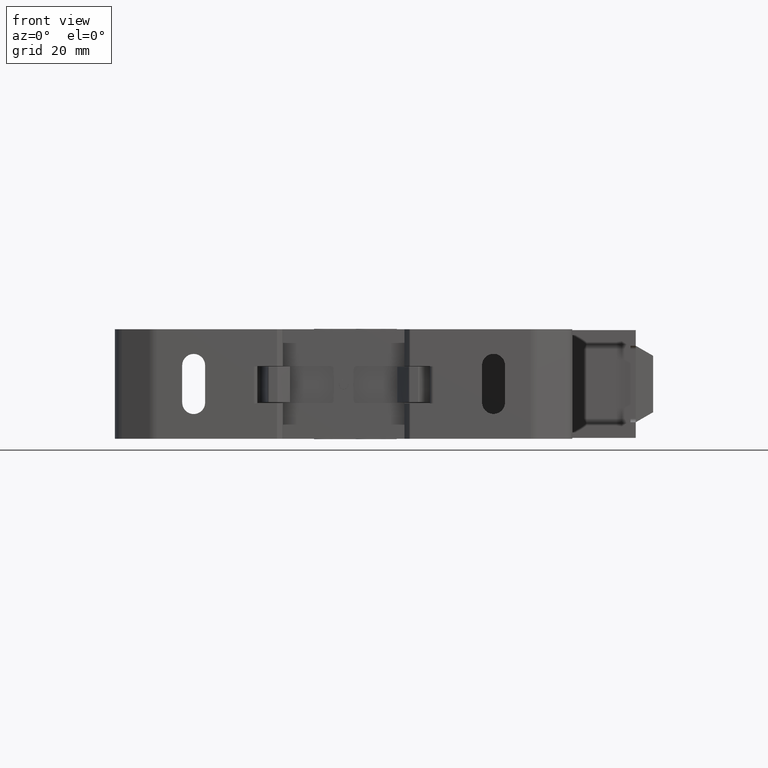
[diagram: clean part render]
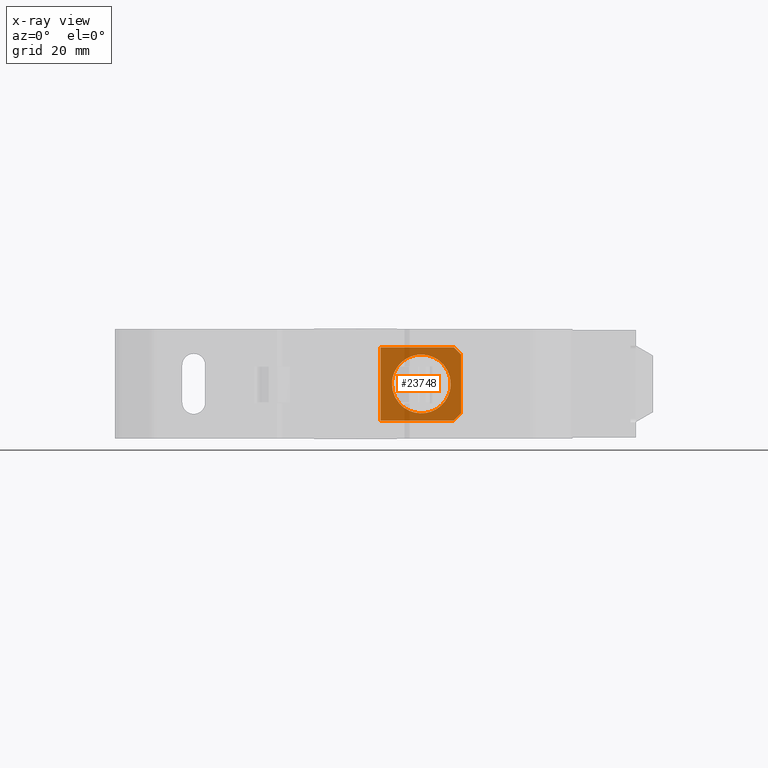
[diagram: x-ray — body ghosted, one internal face saturated and labeled with its STEP entity id]
A machine part, front view, then the same camera in x-ray: the body is ghosted and one INTERNAL B-rep face — a face not visible from any outside direction — is saturated and labeled: STEP entity #23748.
In plain terms, the highlighted planar face has unit normal (0, 1, 0).
Its self-contained STEP definition (entity closure, byte-faithful):
#1706 = EDGE_CURVE ( 'NONE', #12504, #12574, #12009, .T. ) ;
#2049 = EDGE_CURVE ( 'NONE', #12841, #12872, #6339, .T. ) ;
#2131 = EDGE_CURVE ( 'NONE', #12514, #12543, #15639, .T. ) ;
#2186 = EDGE_CURVE ( 'NONE', #12574, #12555, #15781, .T. ) ;
#2216 = EDGE_CURVE ( 'NONE', #12543, #12531, #15830, .T. ) ;
#2240 = EDGE_CURVE ( 'NONE', #12514, #12555, #15875, .T. ) ;
#2245 = EDGE_CURVE ( 'NONE', #12531, #12504, #15907, .T. ) ;
#2386 = AXIS2_PLACEMENT_3D ( 'NONE', #3740, #3721, #3754 ) ;
#3721 = DIRECTION ( 'NONE',  ( 0.0000000000000000000, 1.000000000000000000, 0.0000000000000000000 ) ) ;
#3722 = FACE_OUTER_BOUND ( 'NONE', #9302, .T. ) ;
#3723 = FACE_BOUND ( 'NONE', #9308, .T. ) ;
#3740 = CARTESIAN_POINT ( 'NONE',  ( 195.0000000000000000, 11.99999744784864000, 23.99999999999870000 ) ) ;
#3750 = PLANE ( 'NONE',  #2386 ) ;
#3754 = DIRECTION ( 'NONE',  ( 0.0000000000000000000, -0.0000000000000000000, 1.000000000000000000 ) ) ;
#6339 = B_SPLINE_CURVE_WITH_KNOTS ( 'NONE', 3,
 ( #14970, #14995, #14972, #14949, #14975, #14976, #14987, #14960, #14961, #14979, #14962, #14963, #14988, #14950, #14982, #14964, #14965, #14966, #14989, #14999, #14983, #14992, #14968, #14993, #14967, #14969, #14994, #14996, #15000, #15059, #15031, #15040, #15060, #15032, #15058, #15033, #15065, #15011, #15054, #15016, #15003, #15004, #15066, #15020, #15043, #15038, #15046, #15042, #15048, #15026, #15061, #15053, #15005, #15014, #15029, #15037, #15045, #15030, #15055, #15006, #15034, #15049, #15050, #15007, #15062, #15056, #15008, #15009, #15012, #15021, #15041, #15010, #15044, #15018, #15017, #15047, #15019, #15022, #15035, #15063, #15051, #15036, #15027, #15052, #15039, #15013, #15023, #15057, #15028, #15064, #15015, #15024, #15025, #15106, #15109 ),
 .UNSPECIFIED., .F., .F.,
 ( 4, 1, 1, 1, 2, 2, 1, 1, 1, 2, 2, 1, 2, 2, 2, 2, 1, 1, 2, 2, 1, 1, 1, 2, 2, 1, 1, 1, 2, 2, 2, 2, 1, 1, 1, 2, 2, 1, 1, 1, 2, 2, 1, 2, 2, 2, 2, 1, 1, 2, 2, 1, 1, 1, 2, 2, 1, 1, 1, 1, 2, 2, 4 ),
 ( 0.0000000000000000000, 0.03124999999997921800, 0.04687499999996857400, 0.05468749999996324500, 0.05859374999996031000, 0.06249999999995738100, 0.09374999999993491300, 0.1093749999999241200, 0.1171874999999183800, 0.1210937499999155300, 0.1249999999999126700, 0.1562499999998920000, 0.1718749999998816800, 0.1874999999998713500, 0.2187499999998503700, 0.2499999999998293900, 0.2812499999998084300, 0.2968749999997977700, 0.3046874999997925000, 0.3124999999997871700, 0.3437499999997706800, 0.3593749999997623600, 0.3671874999997581400, 0.3710937499997559700, 0.3749999999997538100, 0.4062499999997332700, 0.4218749999997230500, 0.4296874999997179500, 0.4335937499997154500, 0.4374999999997129000, 0.4687499999997057900, 0.4999999999996986900, 0.5312499999996915800, 0.5468749999996896900, 0.5546874999996888000, 0.5585937499996900300, 0.5624999999996912500, 0.5937499999997014600, 0.6093749999997051200, 0.6171874999997054600, 0.6210937499997071200, 0.6249999999997086800, 0.6562499999997362100, 0.6718749999997499800, 0.6874999999997638600, 0.7187499999997913900, 0.7499999999998188100, 0.7812499999998463500, 0.7968749999998600000, 0.8046874999998658900, 0.8124999999998717700, 0.8437499999998904200, 0.8593749999998997500, 0.8671874999999046300, 0.8710937499999068500, 0.8749999999999091800, 0.9062499999999340500, 0.9218749999999460400, 0.9296874999999520400, 0.9335937499999551500, 0.9355468749999564800, 0.9374999999999578100, 1.000000000000000000 ),
 .UNSPECIFIED. ) ;
#7824 = VECTOR ( 'NONE', #15877, 1000.000000000000000 ) ;
#7842 = VECTOR ( 'NONE', #15679, 1000.000000000000000 ) ;
#7846 = VECTOR ( 'NONE', #15759, 1000.000000000000000 ) ;
#7887 = VECTOR ( 'NONE', #15799, 1000.000000000000000 ) ;
#7900 = VECTOR ( 'NONE', #15917, 1000.000000000000000 ) ;
#8069 = VECTOR ( 'NONE', #12016, 1000.000000000000000 ) ;
#9302 = EDGE_LOOP ( 'NONE', ( #25243, #25180, #25185, #25211, #25224, #25190 ) ) ;
#9308 = EDGE_LOOP ( 'NONE', ( #25168, #25181 ) ) ;
#11166 = EDGE_CURVE ( 'NONE', #12872, #12841, #16175, .T. ) ;
#12009 = LINE ( 'NONE', #12010, #8069 ) ;
#12010 = CARTESIAN_POINT ( 'NONE',  ( 193.0000000000000000, 11.99999744784863900, 23.99999999999870000 ) ) ;
#12016 = DIRECTION ( 'NONE',  ( -0.7071067811865482400, -0.0000000000000000000, 0.7071067811865469100 ) ) ;
#12504 = VERTEX_POINT ( 'NONE', #26276 ) ;
#12514 = VERTEX_POINT ( 'NONE', #26310 ) ;
#12531 = VERTEX_POINT ( 'NONE', #26344 ) ;
#12543 = VERTEX_POINT ( 'NONE', #26355 ) ;
#12555 = VERTEX_POINT ( 'NONE', #26316 ) ;
#12574 = VERTEX_POINT ( 'NONE', #26378 ) ;
#12841 = VERTEX_POINT ( 'NONE', #26679 ) ;
#12872 = VERTEX_POINT ( 'NONE', #26644 ) ;
#14949 = CARTESIAN_POINT ( 'NONE',  ( 191.9806942001365500, 11.99999744784863900, 14.59269266149574000 ) ) ;
#14950 = CARTESIAN_POINT ( 'NONE',  ( 191.4818012685582900, 11.99999744784863700, 16.54642125705480300 ) ) ;
#14960 = CARTESIAN_POINT ( 'NONE',  ( 191.9151391918946700, 11.99999744784864200, 15.00401838029684300 ) ) ;
#14961 = CARTESIAN_POINT ( 'NONE',  ( 191.8593321082791500, 11.99999744784864200, 15.30614309357065400 ) ) ;
#14962 = CARTESIAN_POINT ( 'NONE',  ( 191.6224311479026000, 11.99999744784864000, 16.16008941292181000 ) ) ;
#14963 = CARTESIAN_POINT ( 'NONE',  ( 191.5423930576236300, 11.99999744784864200, 16.38594702912222400 ) ) ;
#14964 = CARTESIAN_POINT ( 'NONE',  ( 191.3520683225435400, 11.99999744784864000, 16.87500961269005000 ) ) ;
#14965 = CARTESIAN_POINT ( 'NONE',  ( 191.1755677909162000, 11.99999744784863900, 17.26265686539646200 ) ) ;
#14966 = CARTESIAN_POINT ( 'NONE',  ( 190.9697809039120100, 11.99999744784864200, 17.63640403415840700 ) ) ;
#14967 = CARTESIAN_POINT ( 'NONE',  ( 189.3696509937148000, 11.99999744784864000, 19.68061693844131500 ) ) ;
#14968 = CARTESIAN_POINT ( 'NONE',  ( 189.9768832214970200, 11.99999744784864000, 19.05186394903301000 ) ) ;
#14969 = CARTESIAN_POINT ( 'NONE',  ( 189.0467027463389800, 11.99999744784863900, 19.97198538759694100 ) ) ;
#14970 = CARTESIAN_POINT ( 'NONE',  ( 192.0500080417064100, 11.99999744784972200, 13.49999999999870100 ) ) ;
#14972 = CARTESIAN_POINT ( 'NONE',  ( 192.0320430057445300, 11.99999744784864000, 14.14541888019480200 ) ) ;
#14975 = CARTESIAN_POINT ( 'NONE',  ( 191.9473671761943200, 11.99999744784863900, 14.81543755842851300 ) ) ;
#14976 = CARTESIAN_POINT ( 'NONE',  ( 191.9314443185464500, 11.99999744784864200, 14.91070851560304600 ) ) ;
#14979 = CARTESIAN_POINT ( 'NONE',  ( 191.7655999834757700, 11.99999744784864000, 15.70416113195108400 ) ) ;
#14982 = CARTESIAN_POINT ( 'NONE',  ( 191.4698005435755300, 11.99999744784864000, 16.57732413118800400 ) ) ;
#14983 = CARTESIAN_POINT ( 'NONE',  ( 190.5136732317134300, 11.99999744784863900, 18.36723624780117700 ) ) ;
#14987 = CARTESIAN_POINT ( 'NONE',  ( 191.9204646695842200, 11.99999744784864000, 14.97418001116142400 ) ) ;
#14988 = CARTESIAN_POINT ( 'NONE',  ( 191.5062795176842200, 11.99999744784863900, 16.48229175228991400 ) ) ;
#14989 = CARTESIAN_POINT ( 'NONE',  ( 190.8260815669364100, 11.99999744784864200, 17.88247990578981500 ) ) ;
#14992 = CARTESIAN_POINT ( 'NONE',  ( 190.3427364777547600, 11.99999744784864000, 18.60148732072545400 ) ) ;
#14993 = CARTESIAN_POINT ( 'NONE',  ( 189.7804696917423500, 11.99999744784864000, 19.26948766361679700 ) ) ;
#14994 = CARTESIAN_POINT ( 'NONE',  ( 188.6439698993206100, 11.99999744784863900, 20.28220285776034300 ) ) ;
#14995 = CARTESIAN_POINT ( 'NONE',  ( 192.0498187095054200, 11.99999744784864400, 13.75898308919046900 ) ) ;
#14996 = CARTESIAN_POINT ( 'NONE',  ( 188.4658072737956300, 11.99999744784864000, 20.40878626200505500 ) ) ;
#14999 = CARTESIAN_POINT ( 'NONE',  ( 190.7520935513961100, 11.99999744784864000, 18.00226550025900400 ) ) ;
#15000 = CARTESIAN_POINT ( 'NONE',  ( 188.3457960047910000, 11.99999744784863900, 20.49176032258796500 ) ) ;
#15003 = CARTESIAN_POINT ( 'NONE',  ( 185.3733957693890200, 11.99999744784863700, 21.76227053113214900 ) ) ;
#15004 = CARTESIAN_POINT ( 'NONE',  ( 185.2725355354336600, 11.99999744784863900, 21.78285807558034600 ) ) ;
#15005 = CARTESIAN_POINT ( 'NONE',  ( 182.1900077742890300, 11.99999744784863700, 21.83156710292424700 ) ) ;
#15006 = CARTESIAN_POINT ( 'NONE',  ( 180.6177162806416200, 11.99999744784864200, 21.40627147251517200 ) ) ;
#15007 = CARTESIAN_POINT ( 'NONE',  ( 179.8373511763217600, 11.99999744784863900, 21.07555974917820400 ) ) ;
#15008 = CARTESIAN_POINT ( 'NONE',  ( 179.0977425413443300, 11.99999744784864000, 20.65208550961040500 ) ) ;
#15009 = CARTESIAN_POINT ( 'NONE',  ( 178.7327717940999000, 11.99999744784864400, 20.41366519015615900 ) ) ;
#15010 = CARTESIAN_POINT ( 'NONE',  ( 177.4193911033109100, 11.99999744784864200, 19.26964295209954500 ) ) ;
#15011 = CARTESIAN_POINT ( 'NONE',  ( 186.4566731747767100, 11.99999744784863700, 21.45727455393304000 ) ) ;
#15012 = CARTESIAN_POINT ( 'NONE',  ( 178.4985207212751300, 11.99999744784864600, 20.24272843627382900 ) ) ;
#15013 = CARTESIAN_POINT ( 'NONE',  ( 175.5107838397127300, 11.99999744784864400, 15.96976298497176200 ) ) ;
#15014 = CARTESIAN_POINT ( 'NONE',  ( 182.1262001609430000, 11.99999744784864000, 21.82052536700527800 ) ) ;
#15015 = CARTESIAN_POINT ( 'NONE',  ( 175.2973989478625500, 11.99999744784864000, 15.07138840040369000 ) ) ;
#15016 = CARTESIAN_POINT ( 'NONE',  ( 185.6073581485415800, 11.99999744784863900, 21.71009961224765300 ) ) ;
#15017 = CARTESIAN_POINT ( 'NONE',  ( 176.6912217797413400, 11.99999744784864000, 18.36579923216819000 ) ) ;
#15018 = CARTESIAN_POINT ( 'NONE',  ( 176.8178051840073700, 11.99999744784863900, 18.54396185773564600 ) ) ;
#15019 = CARTESIAN_POINT ( 'NONE',  ( 176.5663354883515700, 11.99999744784864200, 18.18343323770439900 ) ) ;
#15020 = CARTESIAN_POINT ( 'NONE',  ( 185.1692235157278500, 11.99999744784864400, 21.80306436789127700 ) ) ;
#15021 = CARTESIAN_POINT ( 'NONE',  ( 178.0481440929685000, 11.99999744784863900, 19.87687518001683200 ) ) ;
#15022 = CARTESIAN_POINT ( 'NONE',  ( 176.3716379061297600, 11.99999744784863900, 17.88587912968480300 ) ) ;
#15023 = CARTESIAN_POINT ( 'NONE',  ( 175.3899086633061600, 11.99999744784863900, 15.50735069694060900 ) ) ;
#15024 = CARTESIAN_POINT ( 'NONE',  ( 175.2940047684845400, 11.99999744784864200, 15.05336975101373300 ) ) ;
#15025 = CARTESIAN_POINT ( 'NONE',  ( 175.1974108018450800, 11.99999744784864000, 14.53256513261963300 ) ) ;
#15026 = CARTESIAN_POINT ( 'NONE',  ( 182.9572781038027100, 11.99999744784863700, 21.93253165968894100 ) ) ;
#15027 = CARTESIAN_POINT ( 'NONE',  ( 175.7698948683519100, 11.99999744784864000, 16.67690529879752500 ) ) ;
#15028 = CARTESIAN_POINT ( 'NONE',  ( 175.3137187817956700, 11.99999744784864000, 15.15571763914829300 ) ) ;
#15029 = CARTESIAN_POINT ( 'NONE',  ( 182.0959896637774600, 11.99999744784863900, 21.81513115112320400 ) ) ;
#15030 = CARTESIAN_POINT ( 'NONE',  ( 180.9399186038109000, 11.99999744784863900, 21.52242309634358700 ) ) ;
#15031 = CARTESIAN_POINT ( 'NONE',  ( 187.9858871713520900, 11.99999744784864200, 20.72837013561521900 ) ) ;
#15032 = CARTESIAN_POINT ( 'NONE',  ( 186.9420101510767200, 11.99999744784864200, 21.26156132252339100 ) ) ;
#15033 = CARTESIAN_POINT ( 'NONE',  ( 186.7769133404886200, 11.99999744784863900, 21.33011317336566700 ) ) ;
#15034 = CARTESIAN_POINT ( 'NONE',  ( 180.5535867800378200, 11.99999744784864000, 21.38179322503074800 ) ) ;
#15035 = CARTESIAN_POINT ( 'NONE',  ( 176.1568069725243800, 11.99999744784863900, 17.51815639983486200 ) ) ;
#15036 = CARTESIAN_POINT ( 'NONE',  ( 175.7970805316332400, 11.99999744784863500, 16.74307724554294600 ) ) ;
#15037 = CARTESIAN_POINT ( 'NONE',  ( 181.7938649291048100, 11.99999744784864200, 21.75932405906554500 ) ) ;
#15038 = CARTESIAN_POINT ( 'NONE',  ( 184.6299313447170800, 11.99999744784864400, 21.89107810894555300 ) ) ;
#15039 = CARTESIAN_POINT ( 'NONE',  ( 175.6427336659439800, 11.99999744784864200, 16.35666558267561800 ) ) ;
#15040 = CARTESIAN_POINT ( 'NONE',  ( 187.6181644414740200, 11.99999744784863900, 20.94320106924865900 ) ) ;
#15041 = CARTESIAN_POINT ( 'NONE',  ( 177.8305203780423400, 11.99999744784864200, 19.68046164994315100 ) ) ;
#15042 = CARTESIAN_POINT ( 'NONE',  ( 183.8574545924298000, 11.99999744784864400, 21.94990550611258200 ) ) ;
#15043 = CARTESIAN_POINT ( 'NONE',  ( 184.8845743853866800, 11.99999744784864200, 21.85585832495511500 ) ) ;
#15044 = CARTESIAN_POINT ( 'NONE',  ( 177.1280226541904900, 11.99999744784864000, 18.94669470479309200 ) ) ;
#15045 = CARTESIAN_POINT ( 'NONE',  ( 181.3958468764588500, 11.99999744784863900, 21.66559192863410000 ) ) ;
#15046 = CARTESIAN_POINT ( 'NONE',  ( 184.1174020804229200, 11.99999744784864200, 21.93810132123822100 ) ) ;
#15047 = CARTESIAN_POINT ( 'NONE',  ( 176.6082477191412700, 11.99999744784864000, 18.24578796312956900 ) ) ;
#15048 = CARTESIAN_POINT ( 'NONE',  ( 183.3425614909631100, 11.99999744784864200, 21.95009449388464200 ) ) ;
#15049 = CARTESIAN_POINT ( 'NONE',  ( 180.5226839105102100, 11.99999744784864000, 21.36979250186717700 ) ) ;
#15050 = CARTESIAN_POINT ( 'NONE',  ( 180.2249984290199600, 11.99999744784864000, 21.25206028081732900 ) ) ;
#15051 = CARTESIAN_POINT ( 'NONE',  ( 175.8384467192134700, 11.99999744784864000, 16.84200210940403500 ) ) ;
#15052 = CARTESIAN_POINT ( 'NONE',  ( 175.7558673017016700, 11.99999744784864000, 16.64211713493492800 ) ) ;
#15053 = CARTESIAN_POINT ( 'NONE',  ( 182.2857468955249400, 11.99999744784863900, 21.84757643883315800 ) ) ;
#15054 = CARTESIAN_POINT ( 'NONE',  ( 186.0697702398739500, 11.99999744784864200, 21.58922451379044500 ) ) ;
#15055 = CARTESIAN_POINT ( 'NONE',  ( 180.7140609980133100, 11.99999744784863900, 21.44238501016820600 ) ) ;
#15056 = CARTESIAN_POINT ( 'NONE',  ( 179.2175281359209900, 11.99999744784863700, 20.72607352521270800 ) ) ;
#15057 = CARTESIAN_POINT ( 'NONE',  ( 175.3377376469854000, 11.99999744784863700, 15.27338807191420100 ) ) ;
#15058 = CARTESIAN_POINT ( 'NONE',  ( 186.8430852872263900, 11.99999744784864200, 21.30292751009237100 ) ) ;
#15059 = CARTESIAN_POINT ( 'NONE',  ( 188.2834412794176700, 11.99999744784864000, 20.53367255334685700 ) ) ;
#15060 = CARTESIAN_POINT ( 'NONE',  ( 187.1705034396006200, 11.99999744784863900, 21.16092636958265100 ) ) ;
#15061 = CARTESIAN_POINT ( 'NONE',  ( 182.5093320869268900, 11.99999744784863900, 21.88105868016731000 ) ) ;
#15062 = CARTESIAN_POINT ( 'NONE',  ( 179.4636040075569400, 11.99999744784864200, 20.86977286218010600 ) ) ;
#15063 = CARTESIAN_POINT ( 'NONE',  ( 175.9390816721743200, 11.99999744784863500, 17.07049539794701000 ) ) ;
#15064 = CARTESIAN_POINT ( 'NONE',  ( 175.3038678344937600, 11.99999744784864400, 15.10513978505161100 ) ) ;
#15065 = CARTESIAN_POINT ( 'NONE',  ( 186.7421252328343300, 11.99999744784864000, 21.34414071773581900 ) ) ;
#15066 = CARTESIAN_POINT ( 'NONE',  ( 185.2051641254879500, 11.99999744784863900, 21.79618945614847500 ) ) ;
#15106 = CARTESIAN_POINT ( 'NONE',  ( 175.1503875895518500, 11.99999744784863700, 14.02003586832567100 ) ) ;
#15109 = CARTESIAN_POINT ( 'NONE',  ( 175.1500080417066000, 11.99999744784963900, 13.49999999999870300 ) ) ;
#15611 = CARTESIAN_POINT ( 'NONE',  ( 193.0000000000000000, 11.99999744784863900, 2.999999999998705000 ) ) ;
#15639 = LINE ( 'NONE', #15611, #7842 ) ;
#15679 = DIRECTION ( 'NONE',  ( 1.000000000000000000, -0.0000000000000000000, 2.468191507804150100E-016 ) ) ;
#15759 = DIRECTION ( 'NONE',  ( -1.000000000000000000, -0.0000000000000000000, 0.0000000000000000000 ) ) ;
#15781 = LINE ( 'NONE', #15792, #7846 ) ;
#15792 = CARTESIAN_POINT ( 'NONE',  ( 171.9150460510239800, 11.99999744784863900, 23.99999999999870000 ) ) ;
#15799 = DIRECTION ( 'NONE',  ( 0.7071067811865487900, -0.0000000000000000000, 0.7071067811865463500 ) ) ;
#15830 = LINE ( 'NONE', #15844, #7887 ) ;
#15844 = CARTESIAN_POINT ( 'NONE',  ( 195.0000000000000000, 11.99999744784863900, 4.999999999998699700 ) ) ;
#15866 = CARTESIAN_POINT ( 'NONE',  ( 171.9150460510239800, 11.99999744784863900, -158.0704905562944900 ) ) ;
#15875 = LINE ( 'NONE', #15866, #7824 ) ;
#15877 = DIRECTION ( 'NONE',  ( 0.0000000000000000000, 0.0000000000000000000, 1.000000000000000000 ) ) ;
#15907 = LINE ( 'NONE', #15914, #7900 ) ;
#15914 = CARTESIAN_POINT ( 'NONE',  ( 195.0000000000000000, 11.99999744784863900, 21.99999999999870000 ) ) ;
#15917 = DIRECTION ( 'NONE',  ( -0.0000000000000000000, -0.0000000000000000000, 1.000000000000000000 ) ) ;
#16175 = B_SPLINE_CURVE_WITH_KNOTS ( 'NONE', 3,
 ( #25829, #25807, #25804, #25810, #25811, #25823, #25785, #25824, #25830, #25831, #25876, #25849, #25890, #25850, #25871, #25844, #25839, #25864, #25862, #25885, #25858, #25861, #25899, #25878, #25840, #25847, #25851, #25852, #25869, #25874, #25853, #25894, #25892, #25863, #25865, #25898, #25896, #25854, #25877, #25848, #25900, #25855, #25856, #25857, #25886, #25867, #25859, #25868, #25837, #25875, #25879, #25838, #25891, #25841, #25860, #25866, #25870, #25897, #25872, #25873, #25880, #25881, #25882, #25883, #25884, #25887, #25888, #25893, #25842, #25895, #25889, #25843, #25845, #25846, #25927, #25940, #25928, #25909, #25929, #25952, #25914, #25908, #25921, #25950, #25911, #25954, #25907, #25955, #25910, #25934, #25922, #25930, #25951, #25941, #25931 ),
 .UNSPECIFIED., .F., .F.,
 ( 4, 1, 1, 1, 2, 2, 1, 1, 1, 2, 2, 1, 2, 2, 2, 2, 1, 1, 2, 2, 1, 1, 1, 2, 2, 1, 1, 1, 2, 2, 2, 2, 1, 1, 1, 2, 2, 1, 1, 1, 2, 2, 1, 2, 2, 2, 2, 1, 1, 2, 2, 1, 1, 1, 2, 2, 1, 1, 1, 1, 2, 2, 4 ),
 ( 0.0000000000000000000, 0.03124999999999480300, 0.04687499999999210400, 0.05468749999999051500, 0.05859374999998973000, 0.06249999999998893900, 0.09374999999998300000, 0.1093749999999800200, 0.1171874999999785300, 0.1210937499999778800, 0.1249999999999772300, 0.1562499999999744900, 0.1718749999999730200, 0.1874999999999715500, 0.2187499999999670300, 0.2499999999999624700, 0.2812499999999578700, 0.2968749999999567600, 0.3046874999999549200, 0.3124999999999531500, 0.3437499999999458800, 0.3593749999999422100, 0.3671874999999403800, 0.3710937499999394400, 0.3749999999999384900, 0.4062499999999459300, 0.4218749999999511500, 0.4296874999999538100, 0.4335937499999535900, 0.4374999999999533700, 0.4687499999999350500, 0.4999999999999166800, 0.5312499999998983000, 0.5468749999998892000, 0.5546874999998862000, 0.5585937499998847600, 0.5624999999998833200, 0.5937499999998779900, 0.6093749999998736600, 0.6171874999998729900, 0.6210937499998727700, 0.6249999999998724400, 0.6562499999998785400, 0.6718749999998816500, 0.6874999999998846500, 0.7187499999998907500, 0.7499999999998968600, 0.7812499999999030800, 0.7968749999999060800, 0.8046874999999077400, 0.8124999999999092900, 0.8437499999999138500, 0.8593749999999169600, 0.8671874999999190600, 0.8710937499999201700, 0.8749999999999212900, 0.9062499999999387200, 0.9218749999999474900, 0.9296874999999518200, 0.9335937499999543700, 0.9355468749999555900, 0.9374999999999567000, 1.000000000000000000 ),
 .UNSPECIFIED. ) ;
#23748 = ADVANCED_FACE ( 'NONE', ( #3722, #3723 ), #3750, .T. ) ;
#25168 = ORIENTED_EDGE ( 'NONE', *, *, #11166, .T. ) ;
#25180 = ORIENTED_EDGE ( 'NONE', *, *, #2240, .T. ) ;
#25181 = ORIENTED_EDGE ( 'NONE', *, *, #2049, .T. ) ;
#25185 = ORIENTED_EDGE ( 'NONE', *, *, #2186, .F. ) ;
#25190 = ORIENTED_EDGE ( 'NONE', *, *, #2216, .F. ) ;
#25211 = ORIENTED_EDGE ( 'NONE', *, *, #1706, .F. ) ;
#25224 = ORIENTED_EDGE ( 'NONE', *, *, #2245, .F. ) ;
#25243 = ORIENTED_EDGE ( 'NONE', *, *, #2131, .F. ) ;
#25785 = CARTESIAN_POINT ( 'NONE',  ( 175.2795514138289000, 11.99999744784864200, 12.02581998879087900 ) ) ;
#25804 = CARTESIAN_POINT ( 'NONE',  ( 175.1679730776690200, 11.99999744784864000, 12.85458111946762800 ) ) ;
#25807 = CARTESIAN_POINT ( 'NONE',  ( 175.1501973739080400, 11.99999744784864000, 13.24101691061542700 ) ) ;
#25810 = CARTESIAN_POINT ( 'NONE',  ( 175.2193218832768500, 11.99999744784863900, 12.40730733825098600 ) ) ;
#25811 = CARTESIAN_POINT ( 'NONE',  ( 175.2526489072189100, 11.99999744784864000, 12.18456244142327800 ) ) ;
#25823 = CARTESIAN_POINT ( 'NONE',  ( 175.2685717648666900, 11.99999744784864000, 12.08929148430724600 ) ) ;
#25824 = CARTESIAN_POINT ( 'NONE',  ( 175.2848768915095000, 11.99999744784864000, 11.99598161972428800 ) ) ;
#25829 = CARTESIAN_POINT ( 'NONE',  ( 175.1500080417066000, 11.99999744784963900, 13.49999999999870300 ) ) ;
#25830 = CARTESIAN_POINT ( 'NONE',  ( 175.3406839752040600, 11.99999744784864000, 11.69385690624948300 ) ) ;
#25831 = CARTESIAN_POINT ( 'NONE',  ( 175.4344161000599300, 11.99999744784863700, 11.29583886773513300 ) ) ;
#25837 = CARTESIAN_POINT ( 'NONE',  ( 183.8574545924431900, 11.99999744784864000, 5.049905506116254500 ) ) ;
#25838 = CARTESIAN_POINT ( 'NONE',  ( 184.9142691878801700, 11.99999744784864400, 5.152423561165570700 ) ) ;
#25839 = CARTESIAN_POINT ( 'NONE',  ( 176.0244482924005100, 11.99999744784863900, 9.737343134846449600 ) ) ;
#25840 = CARTESIAN_POINT ( 'NONE',  ( 177.8303650897326000, 11.99999744784864200, 7.319383061473436300 ) ) ;
#25841 = CARTESIAN_POINT ( 'NONE',  ( 185.0738159224608000, 11.99999744784864000, 5.179474632991272600 ) ) ;
#25842 = CARTESIAN_POINT ( 'NONE',  ( 188.7014953619527400, 11.99999744784863900, 6.757271563569204900 ) ) ;
#25843 = CARTESIAN_POINT ( 'NONE',  ( 189.7806249800967500, 11.99999744784864200, 7.730357047872604200 ) ) ;
#25844 = CARTESIAN_POINT ( 'NONE',  ( 175.8479477608143200, 11.99999744784863900, 10.12499038744854800 ) ) ;
#25845 = CARTESIAN_POINT ( 'NONE',  ( 190.0719934292155800, 11.99999744784863900, 8.053305295162655100 ) ) ;
#25846 = CARTESIAN_POINT ( 'NONE',  ( 190.3822108994004300, 11.99999744784864000, 8.456038142230353200 ) ) ;
#25847 = CARTESIAN_POINT ( 'NONE',  ( 178.1533133371360100, 11.99999744784863900, 7.028014612253801200 ) ) ;
#25848 = CARTESIAN_POINT ( 'NONE',  ( 181.5926579348020500, 11.99999744784864400, 5.289900387768419400 ) ) ;
#25849 = CARTESIAN_POINT ( 'NONE',  ( 175.6576230258427000, 11.99999744784864000, 10.61405297074029100 ) ) ;
#25850 = CARTESIAN_POINT ( 'NONE',  ( 175.7182148148710600, 11.99999744784863900, 10.45357874290136900 ) ) ;
#25851 = CARTESIAN_POINT ( 'NONE',  ( 178.5560461841374700, 11.99999744784863900, 6.717797142127923700 ) ) ;
#25852 = CARTESIAN_POINT ( 'NONE',  ( 178.7342088096447400, 11.99999744784864200, 6.591213737923313300 ) ) ;
#25853 = CARTESIAN_POINT ( 'NONE',  ( 179.2141289122621400, 11.99999744784864200, 6.271629864309760500 ) ) ;
#25854 = CARTESIAN_POINT ( 'NONE',  ( 180.7433429085816100, 11.99999744784864000, 5.542725446079907100 ) ) ;
#25855 = CARTESIAN_POINT ( 'NONE',  ( 181.9274805479498700, 11.99999744784864400, 5.217141924424556300 ) ) ;
#25856 = CARTESIAN_POINT ( 'NONE',  ( 181.9948519579059200, 11.99999744784864200, 5.203810543853581500 ) ) ;
#25857 = CARTESIAN_POINT ( 'NONE',  ( 182.0307925676773100, 11.99999744784864200, 5.196935632108134600 ) ) ;
#25858 = CARTESIAN_POINT ( 'NONE',  ( 176.6863428515002600, 11.99999744784864000, 8.632763752444779100 ) ) ;
#25859 = CARTESIAN_POINT ( 'NONE',  ( 183.0826140029817000, 11.99999744784863900, 5.061898678754040800 ) ) ;
#25860 = CARTESIAN_POINT ( 'NONE',  ( 185.1040264196364800, 11.99999744784864000, 5.184868848874811100 ) ) ;
#25861 = CARTESIAN_POINT ( 'NONE',  ( 176.8572796053598200, 11.99999744784864400, 8.398512679643786800 ) ) ;
#25862 = CARTESIAN_POINT ( 'NONE',  ( 176.3739345164277700, 11.99999744784863900, 9.117520094331384300 ) ) ;
#25863 = CARTESIAN_POINT ( 'NONE',  ( 180.2580059324869000, 11.99999744784863900, 5.738438677419259700 ) ) ;
#25864 = CARTESIAN_POINT ( 'NONE',  ( 176.2302351794251400, 11.99999744784864400, 9.363595966032347600 ) ) ;
#25865 = CARTESIAN_POINT ( 'NONE',  ( 180.3569307962743300, 11.99999744784863900, 5.697072489873301400 ) ) ;
#25866 = CARTESIAN_POINT ( 'NONE',  ( 185.4061511542127500, 11.99999744784863900, 5.240675940910359800 ) ) ;
#25867 = CARTESIAN_POINT ( 'NONE',  ( 182.5700847386880200, 11.99999744784864200, 5.108921891047211600 ) ) ;
#25868 = CARTESIAN_POINT ( 'NONE',  ( 183.3425614909720000, 11.99999744784863900, 5.050094493881349700 ) ) ;
#25869 = CARTESIAN_POINT ( 'NONE',  ( 178.8542200786351700, 11.99999744784864000, 6.508239677372484900 ) ) ;
#25870 = CARTESIAN_POINT ( 'NONE',  ( 185.8041692067945700, 11.99999744784863900, 5.334408071326832300 ) ) ;
#25871 = CARTESIAN_POINT ( 'NONE',  ( 175.7302155398437300, 11.99999744784864000, 10.42267586879411000 ) ) ;
#25872 = CARTESIAN_POINT ( 'NONE',  ( 186.4859550853247500, 11.99999744784864000, 5.557614989810960400 ) ) ;
#25873 = CARTESIAN_POINT ( 'NONE',  ( 186.5822998027227900, 11.99999744784863900, 5.593728527469785700 ) ) ;
#25874 = CARTESIAN_POINT ( 'NONE',  ( 178.9165748039394300, 11.99999744784864400, 6.466327446672579500 ) ) ;
#25875 = CARTESIAN_POINT ( 'NONE',  ( 184.2427379796051500, 11.99999744784864200, 5.067468340314338300 ) ) ;
#25876 = CARTESIAN_POINT ( 'NONE',  ( 175.5775849356022600, 11.99999744784864000, 10.83991058684283500 ) ) ;
#25877 = CARTESIAN_POINT ( 'NONE',  ( 181.1302458434491600, 11.99999744784864000, 5.410775486231657700 ) ) ;
#25878 = CARTESIAN_POINT ( 'NONE',  ( 177.4195463916307700, 11.99999744784864000, 7.730512336468740000 ) ) ;
#25879 = CARTESIAN_POINT ( 'NONE',  ( 184.6906839964797200, 11.99999744784864000, 5.118941319833772300 ) ) ;
#25880 = CARTESIAN_POINT ( 'NONE',  ( 186.6464293033453100, 11.99999744784863900, 5.618206774958356900 ) ) ;
#25881 = CARTESIAN_POINT ( 'NONE',  ( 186.6773321729114900, 11.99999744784864000, 5.630207498135487000 ) ) ;
#25882 = CARTESIAN_POINT ( 'NONE',  ( 186.9750176542420700, 11.99999744784863700, 5.747939719104789600 ) ) ;
#25883 = CARTESIAN_POINT ( 'NONE',  ( 187.3626649068342500, 11.99999744784864000, 5.924440250690200700 ) ) ;
#25884 = CARTESIAN_POINT ( 'NONE',  ( 187.7364120756534500, 11.99999744784864200, 6.130227137715119000 ) ) ;
#25885 = CARTESIAN_POINT ( 'NONE',  ( 176.4479225321146600, 11.99999744784864200, 8.997734499617246600 ) ) ;
#25886 = CARTESIAN_POINT ( 'NONE',  ( 182.3154416980184700, 11.99999744784864000, 5.144141675039774600 ) ) ;
#25887 = CARTESIAN_POINT ( 'NONE',  ( 187.9824879473610200, 11.99999744784864000, 6.273926474718283700 ) ) ;
#25888 = CARTESIAN_POINT ( 'NONE',  ( 188.1022735421228700, 11.99999744784864000, 6.347914490433425700 ) ) ;
#25889 = CARTESIAN_POINT ( 'NONE',  ( 189.3694957053700700, 11.99999744784864000, 7.319538350073271400 ) ) ;
#25890 = CARTESIAN_POINT ( 'NONE',  ( 175.6937365657605600, 11.99999744784863900, 10.51770824762712100 ) ) ;
#25891 = CARTESIAN_POINT ( 'NONE',  ( 185.0100083091153100, 11.99999744784863900, 5.168432897073218500 ) ) ;
#25892 = CARTESIAN_POINT ( 'NONE',  ( 180.0295126440763900, 11.99999744784864200, 5.839073630318683400 ) ) ;
#25893 = CARTESIAN_POINT ( 'NONE',  ( 188.4672442891876500, 11.99999744784864000, 6.586334809737033800 ) ) ;
#25894 = CARTESIAN_POINT ( 'NONE',  ( 179.5818516422942000, 11.99999744784864000, 6.056798930619631700 ) ) ;
#25895 = CARTESIAN_POINT ( 'NONE',  ( 189.1518719902601900, 11.99999744784864000, 7.123124819826419900 ) ) ;
#25896 = CARTESIAN_POINT ( 'NONE',  ( 180.4578908505767500, 11.99999744784863900, 5.655859282263110200 ) ) ;
#25897 = CARTESIAN_POINT ( 'NONE',  ( 186.2600974794801500, 11.99999744784864000, 5.477576903625272400 ) ) ;
#25898 = CARTESIAN_POINT ( 'NONE',  ( 180.4231027429667100, 11.99999744784863700, 5.669886826616521900 ) ) ;
#25899 = CARTESIAN_POINT ( 'NONE',  ( 177.2231328616170500, 11.99999744784863900, 7.948136051336450500 ) ) ;
#25900 = CARTESIAN_POINT ( 'NONE',  ( 181.8266203139801900, 11.99999744784864000, 5.237729468876727500 ) ) ;
#25907 = CARTESIAN_POINT ( 'NONE',  ( 191.8101074201229600, 11.99999744784864000, 11.49264930302541800 ) ) ;
#25908 = CARTESIAN_POINT ( 'NONE',  ( 191.4029355517615200, 11.99999744784864000, 10.25692275443419800 ) ) ;
#25909 = CARTESIAN_POINT ( 'NONE',  ( 190.8283781772427400, 11.99999744784864200, 9.114120870268225300 ) ) ;
#25910 = CARTESIAN_POINT ( 'NONE',  ( 191.8862973016222800, 11.99999744784864000, 11.84428236083920900 ) ) ;
#25911 = CARTESIAN_POINT ( 'NONE',  ( 191.5572824174815000, 11.99999744784863700, 10.64333441729775000 ) ) ;
#25914 = CARTESIAN_POINT ( 'NONE',  ( 191.3615693641691600, 11.99999744784864200, 10.15799789055993300 ) ) ;
#25921 = CARTESIAN_POINT ( 'NONE',  ( 191.4301212150517400, 11.99999744784864800, 10.32309470118910300 ) ) ;
#25922 = CARTESIAN_POINT ( 'NONE',  ( 191.9026171355519400, 11.99999744784864000, 11.92861159959064600 ) ) ;
#25927 = CARTESIAN_POINT ( 'NONE',  ( 190.5087943036680500, 11.99999744784864200, 8.634200767808508200 ) ) ;
#25928 = CARTESIAN_POINT ( 'NONE',  ( 190.6336805950703300, 11.99999744784864000, 8.816566762302159100 ) ) ;
#25929 = CARTESIAN_POINT ( 'NONE',  ( 191.0432091108186500, 11.99999744784863900, 9.481843600086209600 ) ) ;
#25930 = CARTESIAN_POINT ( 'NONE',  ( 191.9060113149284300, 11.99999744784863700, 11.94663024897822200 ) ) ;
#25931 = CARTESIAN_POINT ( 'NONE',  ( 192.0500080417064100, 11.99999744784972200, 13.49999999999870100 ) ) ;
#25934 = CARTESIAN_POINT ( 'NONE',  ( 191.8961482489222000, 11.99999744784864400, 11.89486021493994400 ) ) ;
#25940 = CARTESIAN_POINT ( 'NONE',  ( 190.5917683642693100, 11.99999744784863900, 8.754212036855658900 ) ) ;
#25941 = CARTESIAN_POINT ( 'NONE',  ( 192.0496284938614100, 11.99999744784864200, 12.97996413184142600 ) ) ;
#25950 = CARTESIAN_POINT ( 'NONE',  ( 191.4441487817099700, 11.99999744784864200, 10.35788286506512500 ) ) ;
#25951 = CARTESIAN_POINT ( 'NONE',  ( 192.0026052815681200, 11.99999744784864200, 12.46743486754741200 ) ) ;
#25952 = CARTESIAN_POINT ( 'NONE',  ( 191.2609344111863300, 11.99999744784864000, 9.929504601993242500 ) ) ;
#25954 = CARTESIAN_POINT ( 'NONE',  ( 191.6892322437219300, 11.99999744784864000, 11.03023701498382700 ) ) ;
#25955 = CARTESIAN_POINT ( 'NONE',  ( 191.8622784364369500, 11.99999744784863700, 11.72661192806484600 ) ) ;
#26276 = CARTESIAN_POINT ( 'NONE',  ( 194.9999999999999700, 11.99999744784863900, 21.99999999999870300 ) ) ;
#26310 = CARTESIAN_POINT ( 'NONE',  ( 171.9150460510240100, 11.99999744784863900, 2.999999999998698400 ) ) ;
#26316 = CARTESIAN_POINT ( 'NONE',  ( 171.9150460510240100, 11.99999744784863900, 23.99999999999869300 ) ) ;
#26344 = CARTESIAN_POINT ( 'NONE',  ( 194.9999999999999700, 11.99999744784863900, 4.999999999998693500 ) ) ;
#26355 = CARTESIAN_POINT ( 'NONE',  ( 192.9999999999999700, 11.99999744784863900, 2.999999999998704600 ) ) ;
#26378 = CARTESIAN_POINT ( 'NONE',  ( 192.9999999999999700, 11.99999744784863900, 23.99999999999870000 ) ) ;
#26644 = CARTESIAN_POINT ( 'NONE',  ( 175.1500080417066000, 11.99999744784963900, 13.49999999999870300 ) ) ;
#26679 = CARTESIAN_POINT ( 'NONE',  ( 192.0500080417064100, 11.99999744784972200, 13.49999999999870100 ) ) ;